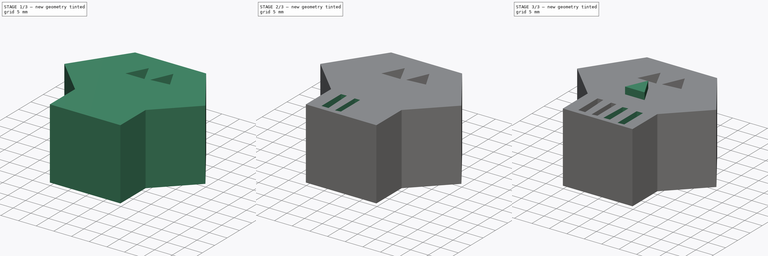
[diagram: build sequence overview — one tinted view per stage of 3, left to right]
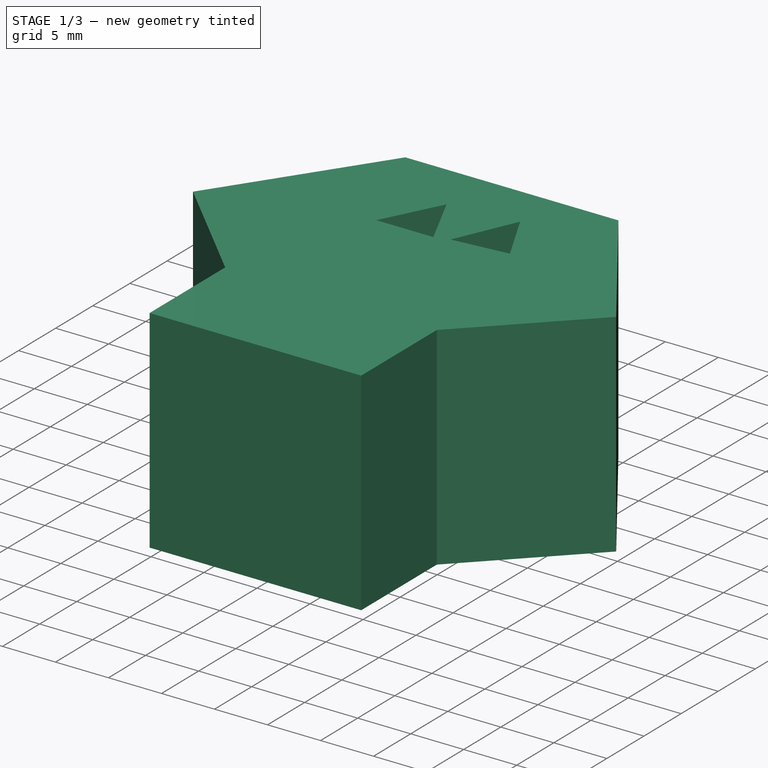
[diagram: stage 1 of 3 — iso view after this stage's code; geometry added in this stage tinted green]
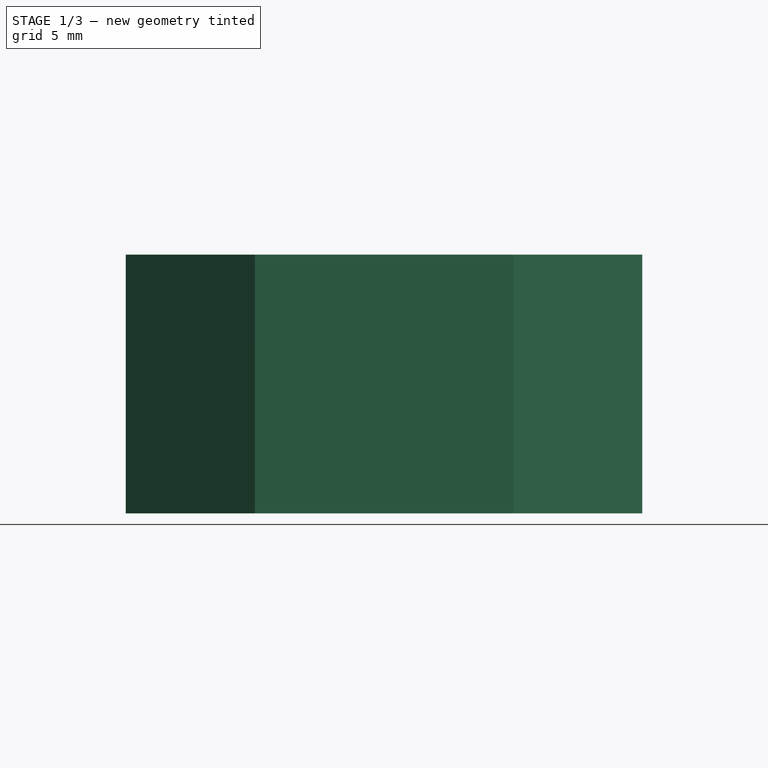
[diagram: stage 1 of 3 — front view after this stage's code; geometry added in this stage tinted green]
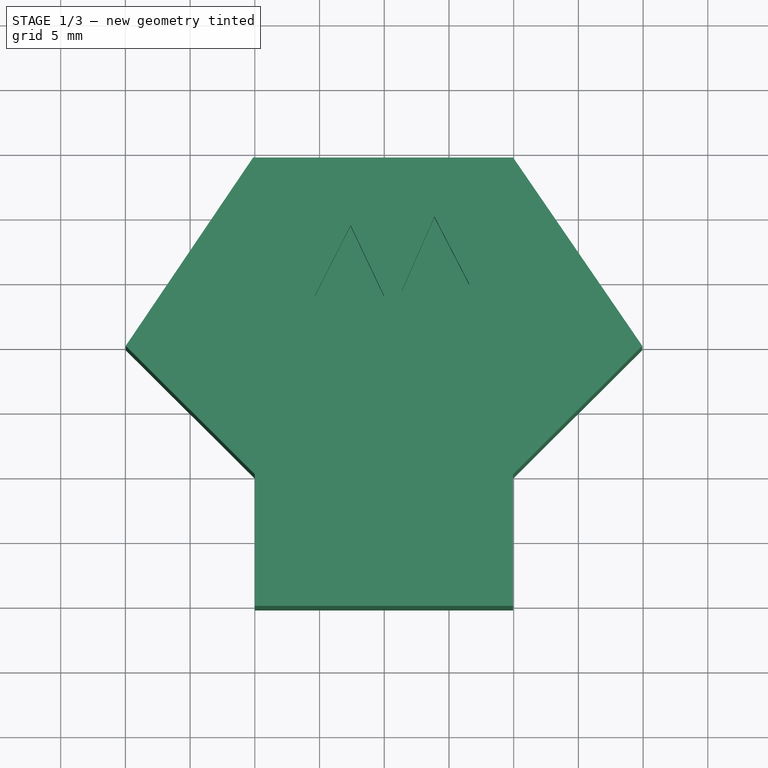
[diagram: stage 1 of 3 — top view after this stage's code; geometry added in this stage tinted green]
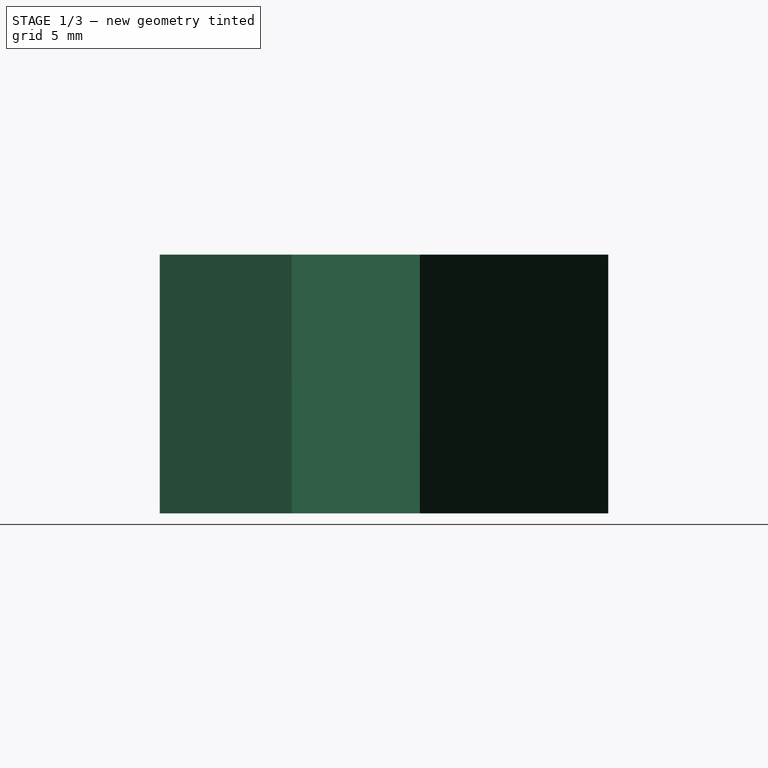
[diagram: stage 1 of 3 — right view after this stage's code; geometry added in this stage tinted green]
FCSTD DOCUMENT  (FreeCAD 0.21R33694 (Git))
Label: OJT1_T17R01_calabera
License: All rights reserved
LicenseURL: http://en.wikipedia.org/wiki/All_rights_reserved
objects: Sketcher::SketchObject×8, PartDesign::Pocket×6, PartDesign::Pad×2, PartDesign::Body×1
note: 25 computed .brp shape members not serialized (recipe doc carries the construction recipe); baked Part::Feature solids carry a one-line shape summary decoded from their .brp

FEATURE [Sketcher::SketchObject] Sketch
  FullyConstrained = false
  MapMode = 5
  Support = -> [XY_Plane]
  sketch-geometry (8):
    g0: LineSegment StartX=-10.137 StartY=24.4653 StartZ=0 EndX=9.95841 EndY=24.4653 EndZ=0
    g1: LineSegment StartX=9.95841 StartY=24.4653 StartZ=0 EndX=19.9368 EndY=9.91344 EndZ=0
    g2: LineSegment StartX=19.9368 StartY=9.91344 StartZ=0 EndX=9.95841 EndY=0 EndZ=0
    g3: LineSegment StartX=9.95841 StartY=0 StartZ=0 EndX=9.95841 EndY=-10.1819 EndZ=0
    g4: LineSegment StartX=9.95841 StartY=-10.1819 StartZ=0 EndX=-9.99838 EndY=-10.1819 EndZ=0
    g5: LineSegment StartX=-9.99838 StartY=-10.1819 StartZ=0 EndX=-9.99838 EndY=0 EndZ=0
    g6: LineSegment StartX=-9.99838 StartY=0 StartZ=0 EndX=-19.9768 EndY=9.91344 EndZ=0
    g7: LineSegment StartX=-19.9768 StartY=9.91344 StartZ=0 EndX=-10.137 EndY=24.4653 EndZ=0
  constraints (14):
    c: Horizontal(g0)
    c: Coincident(g0,g1)
    c: Coincident(g1,g2)
    c: PointOnObject(g2,g-1)
    c: Coincident(g2,g3)
    c: Vertical(g3)
    c: Coincident(g3,g4)
    c: Horizontal(g4)
    c: Coincident(g4,g5)
    c: PointOnObject(g5,g-1)
    c: Vertical(g5)
    c: Coincident(g5,g6)
    c: Coincident(g6,g7)
    c: Coincident(g7,g0)
FEATURE [PartDesign::Pad] Pad
  Direction = (0,0,1)
  Length = 20
  Length2 = 10
  Profile = -> Sketch
  ReferenceAxis = -> Sketch [N_Axis]
  Type = 0
FEATURE [Sketcher::SketchObject] Sketch001
  FullyConstrained = false
  MapMode = 5
  Placement = pos=(0,0,20) rot=(0,0,1;0rad)
  Support = -> [Pad]
  sketch-geometry (3):
    g0: LineSegment StartX=-5.38675 StartY=13.7668 StartZ=0 EndX=0 EndY=13.7668 EndZ=0
    g1: LineSegment StartX=0 StartY=13.7668 StartZ=0 EndX=-2.59978 EndY=19.2478 EndZ=0
    g2: LineSegment StartX=-2.59978 StartY=19.2478 StartZ=0 EndX=-5.38675 EndY=13.7668 EndZ=0
  constraints (5):
    c: PointOnObject(g0,g-2)
    c: Horizontal(g0)
    c: Coincident(g0,g1)
    c: Coincident(g1,g2)
    c: Coincident(g2,g0)
FEATURE [PartDesign::Pocket] Pocket
  BaseFeature = -> Pad
  Direction = (0,0,-1)
  Length = 5
  Length2 = 5
  Profile = -> Sketch001
  ReferenceAxis = -> Sketch001 [N_Axis]
  Type = 0
FEATURE [Sketcher::SketchObject] Sketch002
  FullyConstrained = false
  MapMode = 5
  Placement = pos=(0,0,20) rot=(0,0,1;0rad)
  Support = -> [Pocket]
  sketch-geometry (3):
    g0: LineSegment StartX=1.33587 StartY=14.164 StartZ=0 EndX=6.58332 EndY=14.6719 EndZ=0
    g1: LineSegment StartX=6.58332 StartY=14.6719 StartZ=0 EndX=3.87496 EndY=19.9193 EndZ=0
    g2: LineSegment StartX=3.87496 StartY=19.9193 StartZ=0 EndX=1.33587 EndY=14.164 EndZ=0
  constraints (3):
    c: Coincident(g0,g1)
    c: Coincident(g1,g2)
    c: Coincident(g2,g0)
FEATURE [PartDesign::Pocket] Pocket001
  BaseFeature = -> Pocket
  Direction = (0,0,-1)
  Length = 5
  Length2 = 5
  Profile = -> Sketch002
  ReferenceAxis = -> Sketch002 [N_Axis]
  Type = 0
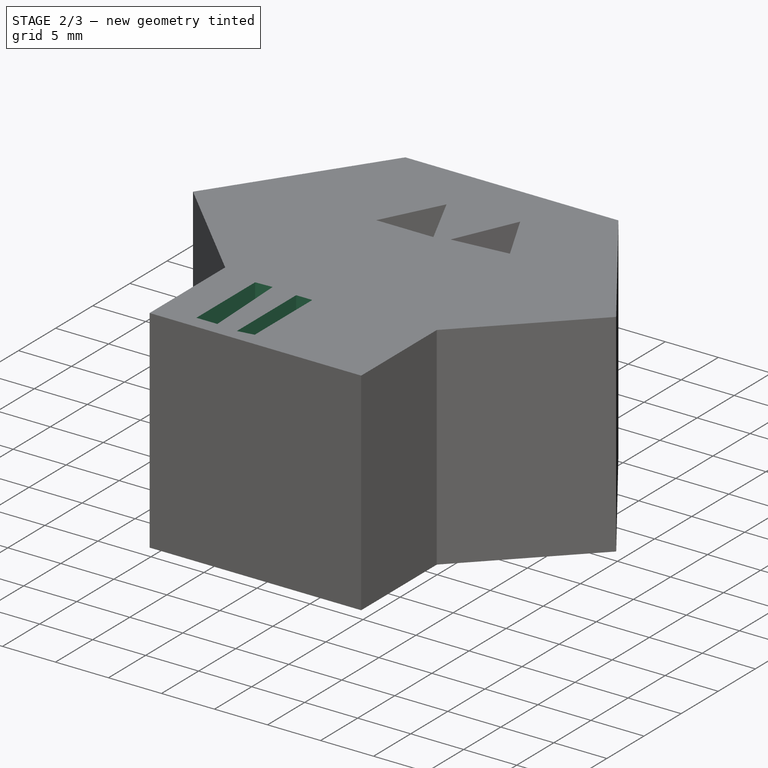
[diagram: stage 2 of 3 — iso view after this stage's code; geometry added in this stage tinted green]
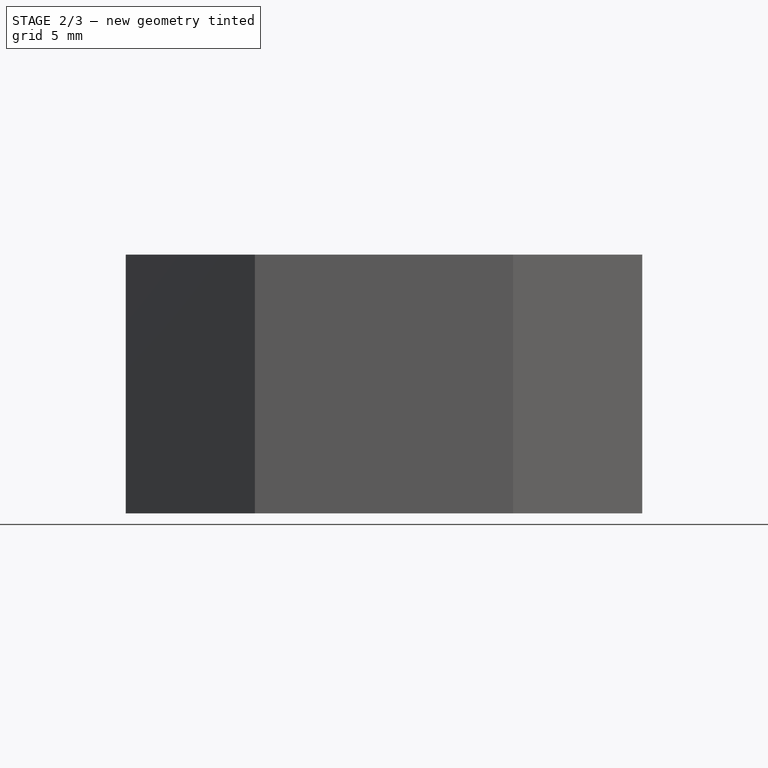
[diagram: stage 2 of 3 — front view after this stage's code; geometry added in this stage tinted green]
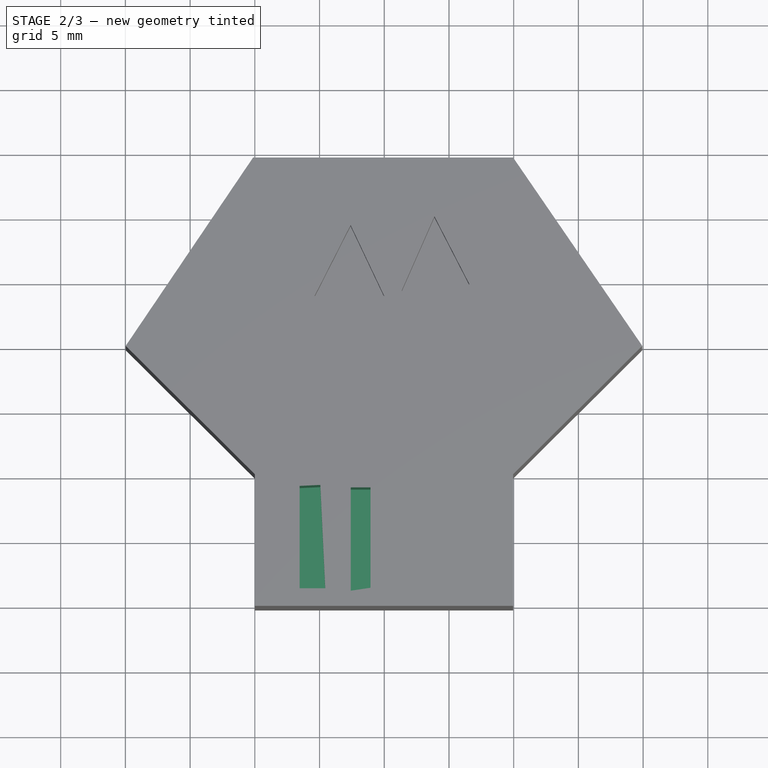
[diagram: stage 2 of 3 — top view after this stage's code; geometry added in this stage tinted green]
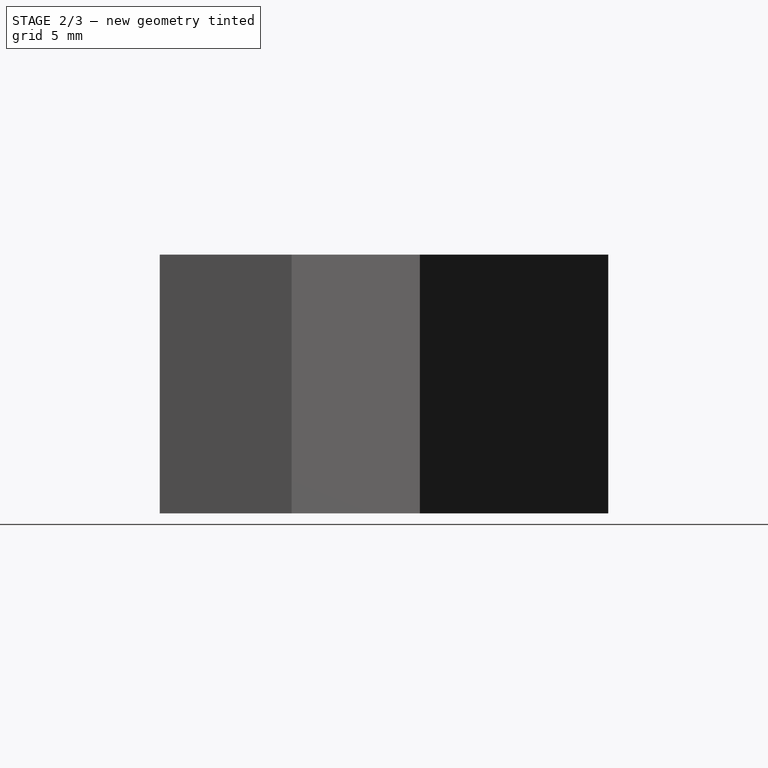
[diagram: stage 2 of 3 — right view after this stage's code; geometry added in this stage tinted green]
FEATURE [Sketcher::SketchObject] Sketch003
  FullyConstrained = false
  MapMode = 5
  Placement = pos=(0,0,20) rot=(0,0,1;0rad)
  Support = -> [Pocket001]
  sketch-geometry (4):
    g0: LineSegment StartX=-6.53888 StartY=-0.90654 StartZ=0 EndX=-4.94164 EndY=-0.83048 EndZ=0
    g1: LineSegment StartX=-4.94164 StartY=-0.83048 StartZ=0 EndX=-4.56134 EndY=-8.81669 EndZ=0
    g2: LineSegment StartX=-4.56134 StartY=-8.81669 StartZ=0 EndX=-6.53888 EndY=-8.81669 EndZ=0
    g3: LineSegment StartX=-6.53888 StartY=-8.81669 StartZ=0 EndX=-6.53888 EndY=-0.90654 EndZ=0
  constraints (6):
    c: Coincident(g0,g1)
    c: Coincident(g1,g2)
    c: Horizontal(g2)
    c: Coincident(g2,g3)
    c: Coincident(g3,g0)
    c: Vertical(g3)
FEATURE [PartDesign::Pocket] Pocket002
  BaseFeature = -> Pocket001
  Direction = (0,0,-1)
  Length = 10
  Length2 = 5
  Profile = -> Sketch003
  ReferenceAxis = -> Sketch003 [N_Axis]
  Type = 0
FEATURE [Sketcher::SketchObject] Sketch004
  FullyConstrained = false
  MapMode = 5
  Placement = pos=(0,0,20) rot=(0,0,1;0rad)
  Support = -> [Pocket002]
  sketch-geometry (4):
    g0: LineSegment StartX=-2.5889 StartY=-1.01974 StartZ=0 EndX=-1.06772 EndY=-1.01974 EndZ=0
    g1: LineSegment StartX=-1.06772 StartY=-1.01974 StartZ=0 EndX=-1.06772 EndY=-8.77777 EndZ=0
    g2: LineSegment StartX=-1.06772 StartY=-8.77777 StartZ=0 EndX=-2.5889 EndY=-9.00595 EndZ=0
    g3: LineSegment StartX=-2.5889 StartY=-9.00595 StartZ=0 EndX=-2.5889 EndY=-1.01974 EndZ=0
  constraints (7):
    c: Horizontal(g0)
    c: Coincident(g0,g1)
    c: Vertical(g1)
    c: Coincident(g1,g2)
    c: Coincident(g2,g3)
    c: Coincident(g3,g0)
    c: Vertical(g3)
FEATURE [PartDesign::Pocket] Pocket003
  BaseFeature = -> Pocket002
  Direction = (0,0,-1)
  Length = 10
  Length2 = 5
  Profile = -> Sketch004
  ReferenceAxis = -> Sketch004 [N_Axis]
  Type = 0
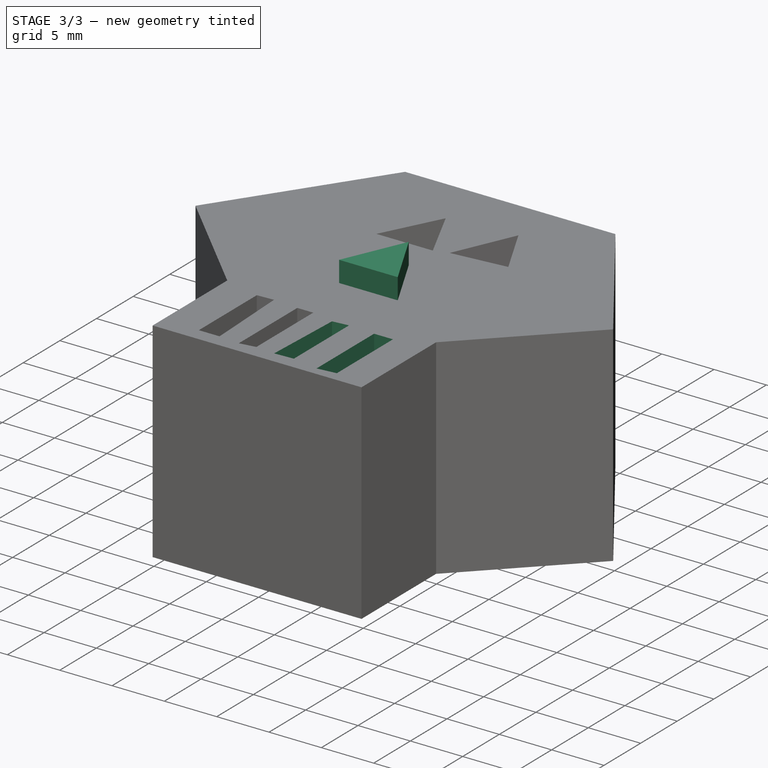
[diagram: stage 3 of 3 — iso view after this stage's code; geometry added in this stage tinted green]
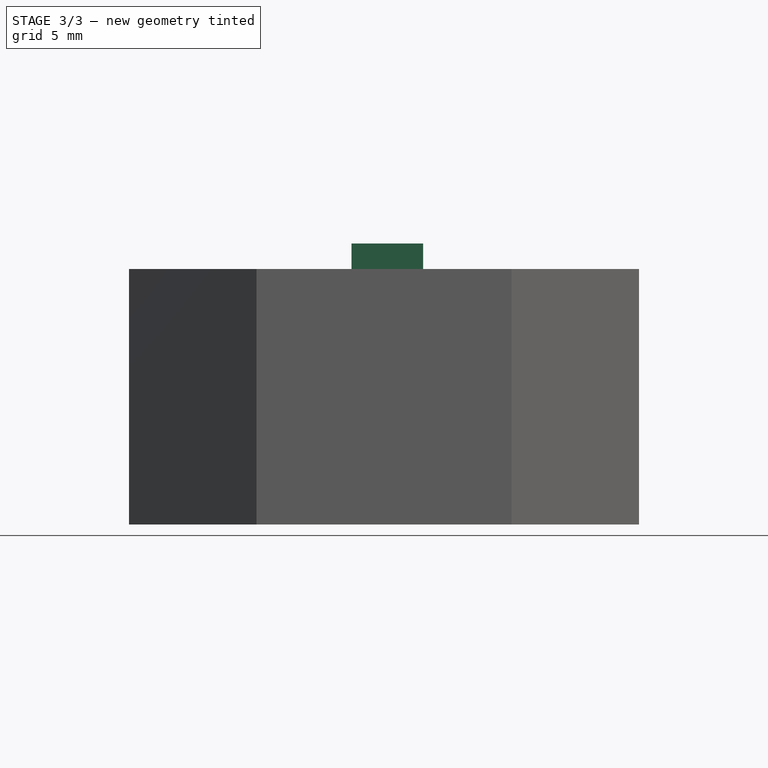
[diagram: stage 3 of 3 — front view after this stage's code; geometry added in this stage tinted green]
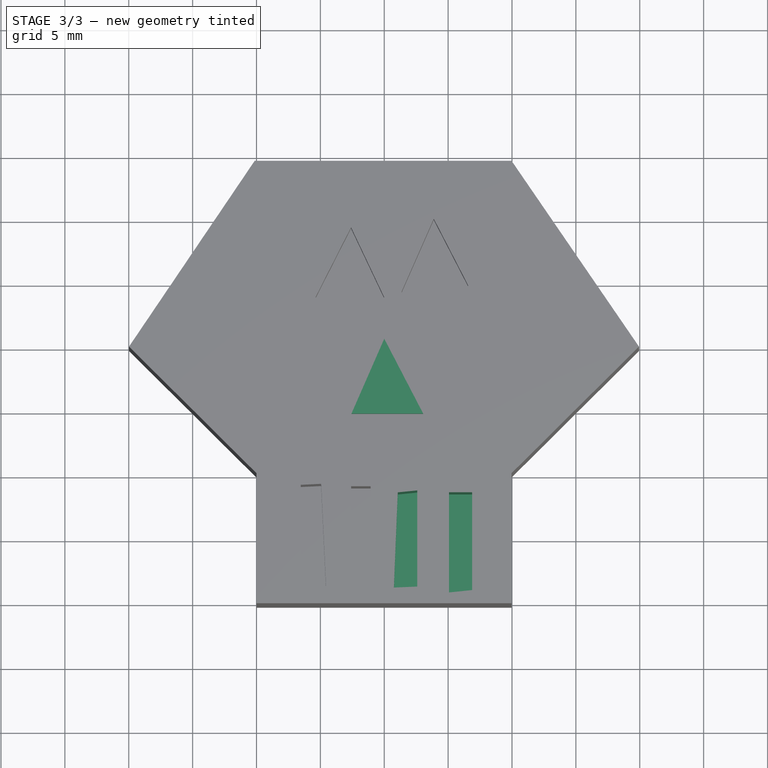
[diagram: stage 3 of 3 — top view after this stage's code; geometry added in this stage tinted green]
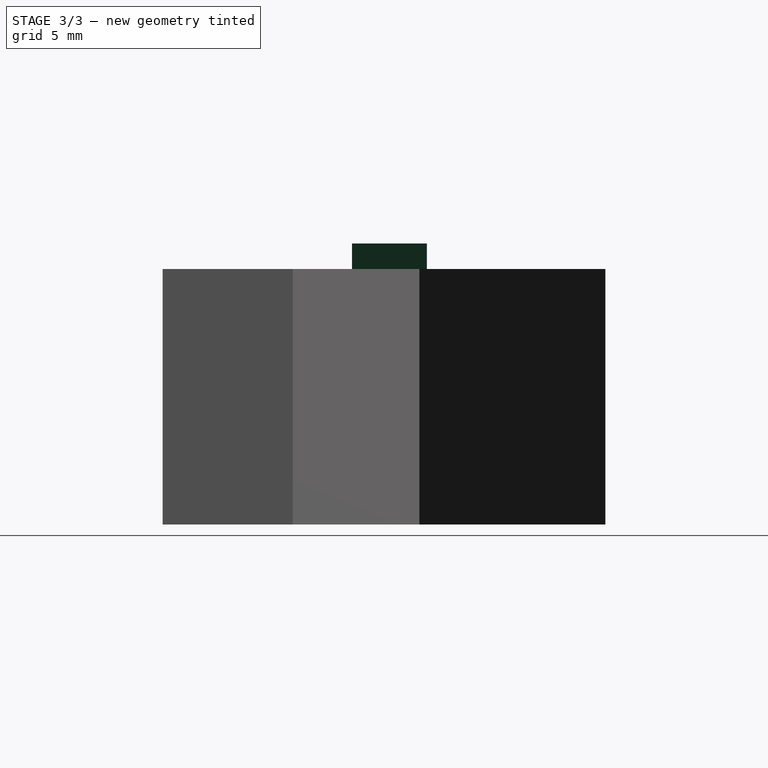
[diagram: stage 3 of 3 — right view after this stage's code; geometry added in this stage tinted green]
FEATURE [Sketcher::SketchObject] Sketch005
  FullyConstrained = false
  MapMode = 5
  Placement = pos=(0,0,20) rot=(0,0,1;0rad)
  Support = -> [Pocket003]
  sketch-geometry (4):
    g0: LineSegment StartX=1.05956 StartY=-1.49594 StartZ=0 EndX=2.58074 EndY=-1.34382 EndZ=0
    g1: LineSegment StartX=2.58074 StartY=-1.34382 StartZ=0 EndX=2.58074 EndY=-8.87367 EndZ=0
    g2: LineSegment StartX=2.58074 StartY=-8.87367 StartZ=0 EndX=0.755325 EndY=-8.94973 EndZ=0
    g3: LineSegment StartX=0.755325 StartY=-8.94973 StartZ=0 EndX=1.05956 EndY=-1.49594 EndZ=0
  constraints (5):
    c: Coincident(g0,g1)
    c: Vertical(g1)
    c: Coincident(g1,g2)
    c: Coincident(g2,g3)
    c: Coincident(g3,g0)
FEATURE [PartDesign::Pocket] Pocket004
  BaseFeature = -> Pocket003
  Direction = (0,0,-1)
  Length = 10
  Length2 = 5
  Profile = -> Sketch005
  ReferenceAxis = -> Sketch005 [N_Axis]
  Type = 0
FEATURE [Sketcher::SketchObject] Sketch006
  FullyConstrained = false
  MapMode = 5
  Placement = pos=(0,0,20) rot=(0,0,1;0rad)
  Support = -> [Pocket004]
  sketch-geometry (4):
    g0: LineSegment StartX=5.07245 StartY=-1.48634 StartZ=0 EndX=6.87833 EndY=-1.48634 EndZ=0
    g1: LineSegment StartX=6.87833 StartY=-1.48634 StartZ=0 EndX=6.87833 EndY=-9.14579 EndZ=0
    g2: LineSegment StartX=6.87833 StartY=-9.14579 StartZ=0 EndX=5.07245 EndY=-9.33261 EndZ=0
    g3: LineSegment StartX=5.07245 StartY=-9.33261 StartZ=0 EndX=5.07245 EndY=-1.48634 EndZ=0
  constraints (7):
    c: Horizontal(g0)
    c: Coincident(g0,g1)
    c: Vertical(g1)
    c: Coincident(g1,g2)
    c: Coincident(g2,g3)
    c: Coincident(g3,g0)
    c: Vertical(g3)
FEATURE [PartDesign::Pocket] Pocket005
  BaseFeature = -> Pocket004
  Direction = (0,0,-1)
  Length = 10
  Length2 = 5
  Profile = -> Sketch006
  ReferenceAxis = -> Sketch006 [N_Axis]
  Type = 0
FEATURE [Sketcher::SketchObject] Sketch007
  FullyConstrained = false
  MapMode = 5
  Placement = pos=(0,0,20) rot=(0,0,1;0rad)
  Support = -> [Pocket005]
  sketch-geometry (3):
    g0: LineSegment StartX=0 StartY=10.4953 StartZ=0 EndX=-2.56309 EndY=4.64177 EndZ=0
    g1: LineSegment StartX=-2.56309 StartY=4.64177 StartZ=0 EndX=3.04138 EndY=4.64177 EndZ=0
    g2: LineSegment StartX=3.04138 StartY=4.64177 StartZ=0 EndX=0 EndY=10.4953 EndZ=0
  constraints (5):
    c: PointOnObject(g0,g-2)
    c: Coincident(g0,g1)
    c: Horizontal(g1)
    c: Coincident(g1,g2)
    c: Coincident(g2,g0)
FEATURE [PartDesign::Pad] Pad001
  BaseFeature = -> Pocket005
  Direction = (0,0,1)
  Length = 2
  Length2 = 10
  Profile = -> Sketch007
  ReferenceAxis = -> Sketch007 [N_Axis]
  Type = 0
FEATURE [PartDesign::Body] Body
  Group = -> [Sketch,Pad,Sketch001,Pocket,Sketch002,Pocket001,Sketch003,Pocket002,Sketch004,Pocket003,Sketch005,Pocket004,Sketch006,Pocket005,Sketch007,Pad001]
  Origin = -> Origin
  Tip = -> Pad001
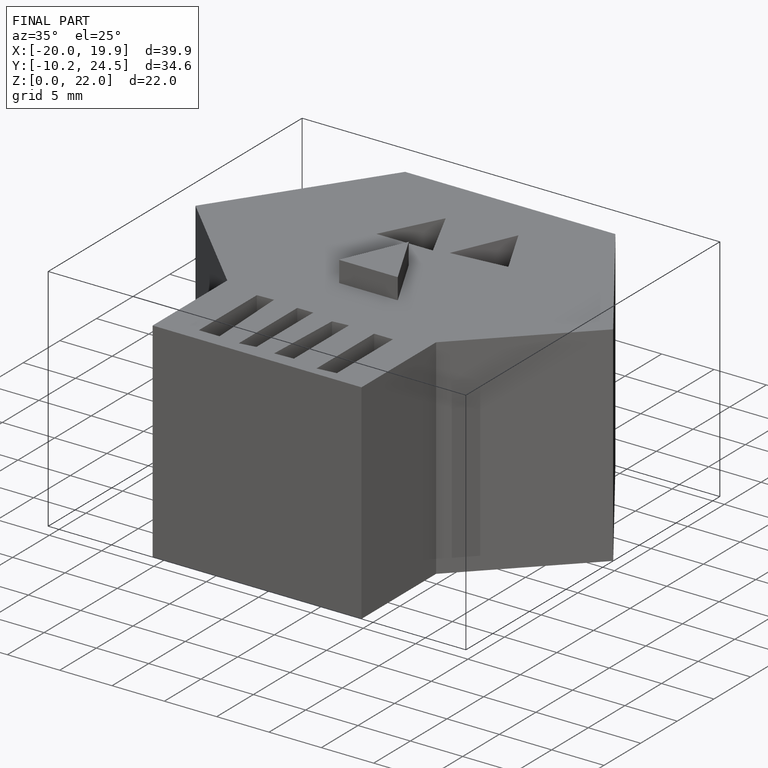
[diagram: finished part — iso view with bounding-box wireframe]
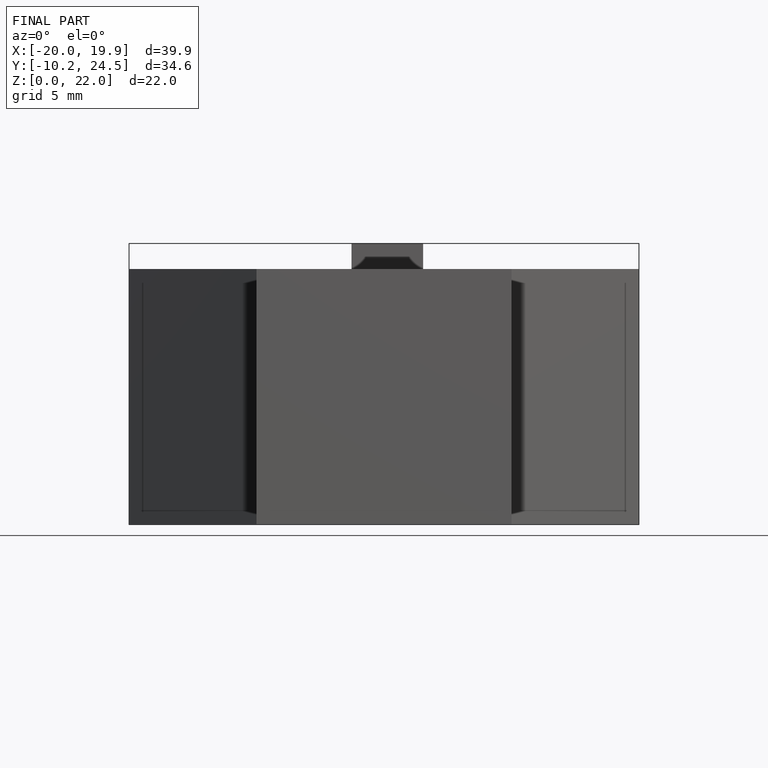
[diagram: finished part — front view with bounding-box wireframe]
